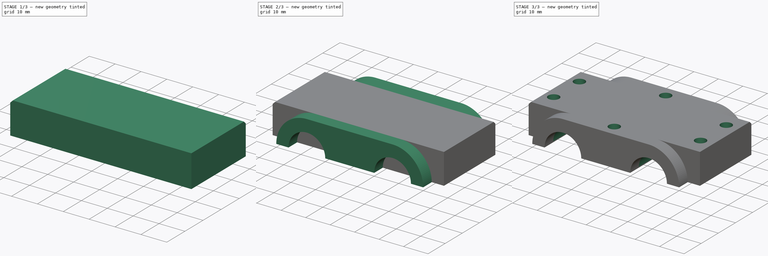
[diagram: build sequence overview — one tinted view per stage of 3, left to right]
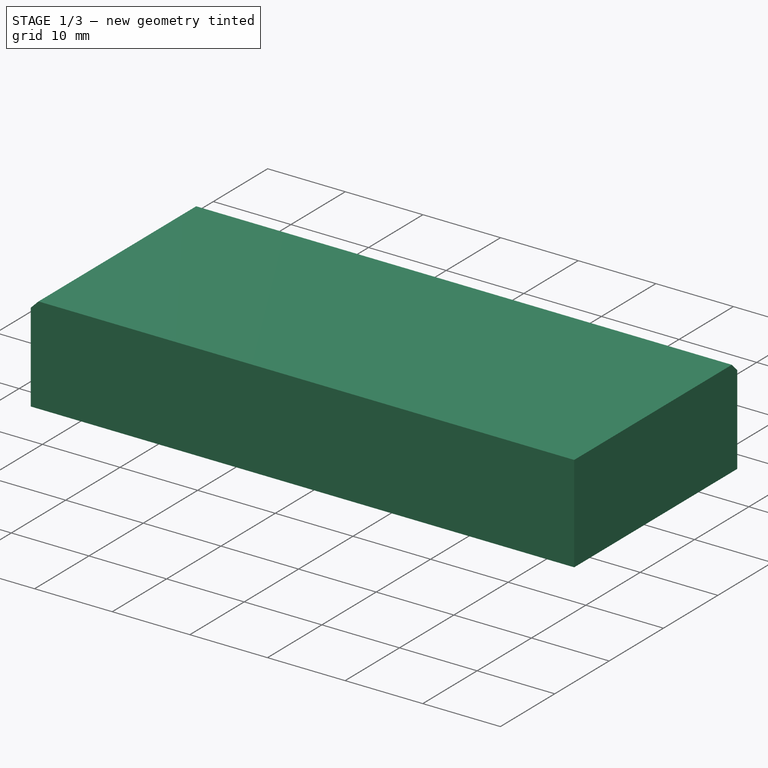
[diagram: stage 1 of 3 — iso view after this stage's code; geometry added in this stage tinted green]
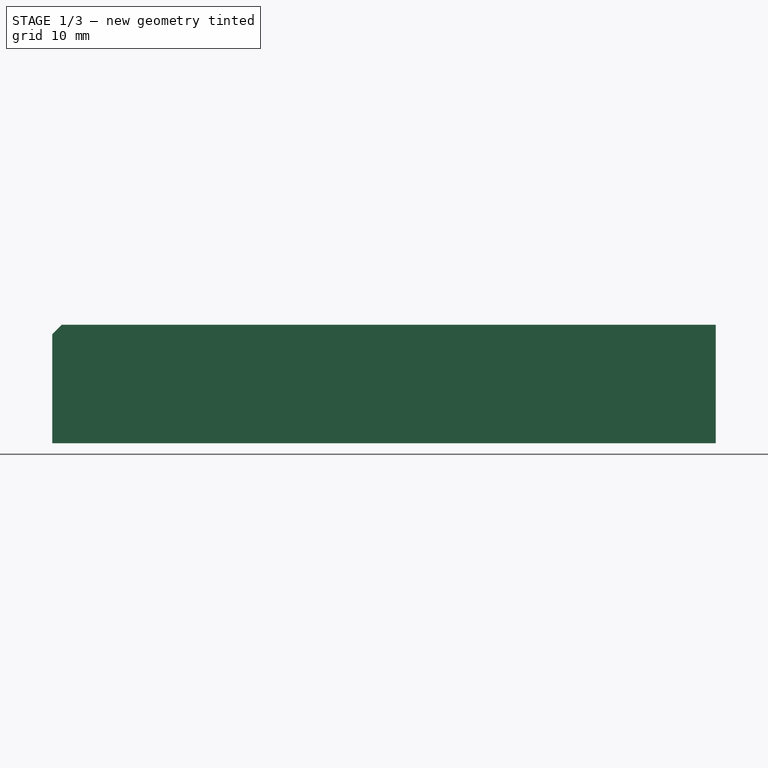
[diagram: stage 1 of 3 — front view after this stage's code; geometry added in this stage tinted green]
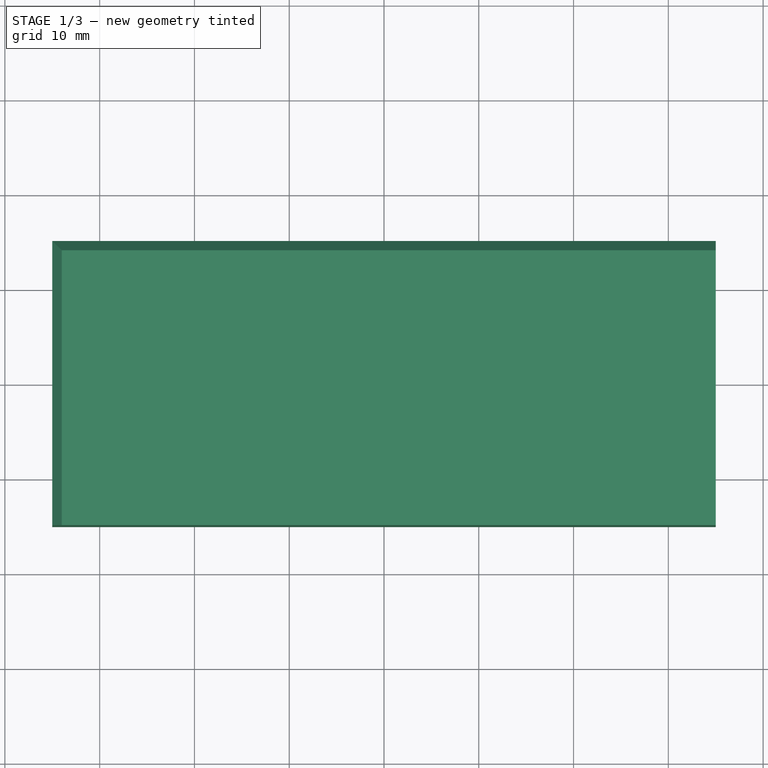
[diagram: stage 1 of 3 — top view after this stage's code; geometry added in this stage tinted green]
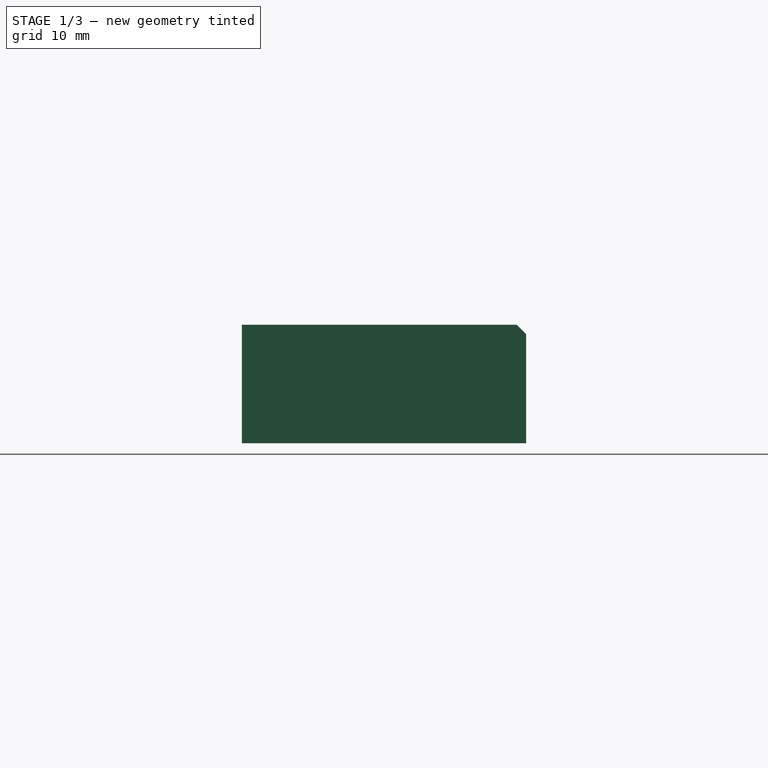
[diagram: stage 1 of 3 — right view after this stage's code; geometry added in this stage tinted green]
FCSTD DOCUMENT  (FreeCAD 0.16RUnknown)
Label: superior
License: All rights reserved
LicenseURL: http://en.wikipedia.org/wiki/All_rights_reserved
objects: Sketcher::SketchObject×4, PartDesign::Pad×2, PartDesign::Pocket×2, PartDesign::Chamfer×1
note: 13 computed .brp shape members not serialized (recipe doc carries the construction recipe); baked Part::Feature solids carry a one-line shape summary decoded from their .brp

FEATURE [Sketcher::SketchObject] Sketch
  sketch-geometry (8):
    g0: LineSegment StartX=-35 StartY=15 StartZ=0 EndX=-35 EndY=-15 EndZ=0
    g1: LineSegment StartX=-35 StartY=-15 StartZ=0 EndX=-30 EndY=-15 EndZ=0
    g2: LineSegment StartX=-30 StartY=-15 StartZ=0 EndX=30 EndY=-15 EndZ=0
    g3: LineSegment StartX=30 StartY=-15 StartZ=0 EndX=35 EndY=-15 EndZ=0
    g4: LineSegment StartX=35 StartY=-15 StartZ=0 EndX=35 EndY=15 EndZ=0
    g5: LineSegment StartX=35 StartY=15 StartZ=0 EndX=30 EndY=15 EndZ=0
    g6: LineSegment StartX=-30 StartY=15 StartZ=0 EndX=-35 EndY=15 EndZ=0
    g7: LineSegment StartX=-30 StartY=15 StartZ=0 EndX=30 EndY=15 EndZ=0
  constraints (23):
    c: Vertical(g0)
    c: Coincident(g0,g1)
    c: Horizontal(g1)
    c: Horizontal(g2)
    c: Horizontal(g3)
    c: Coincident(g3,g4)
    c: Vertical(g4)
    c: Coincident(g4,g5)
    c: Horizontal(g5)
    c: Coincident(g6,g0)
    c: Horizontal(g6)
    c: Symmetric(g5,g6,g-2)
    c: Symmetric(g2,g2,g-2)
    c: Symmetric(g5,g3,g-1)
    c: Symmetric(g6,g1,g-1)
    c: Symmetric(g4,g0,g-2)
    c: DistanceX(g2,g2) = 60
    c: DistanceY(g0,g0) = 30
    c: Equal(g0,g4)
    c: DistanceX(g0,g3) = 70
    c: Coincident(g2,g1)
    c: Coincident(g7,g6)
    c: Coincident(g7,g5)
FEATURE [PartDesign::Pad] Pad
  Length = 12.5
  Length2 = 100
  Sketch = -> Sketch
  Type = 0
FEATURE [PartDesign::Chamfer] Chamfer
  Base = -> Pad [Edge22,Edge4]
  Size = 1
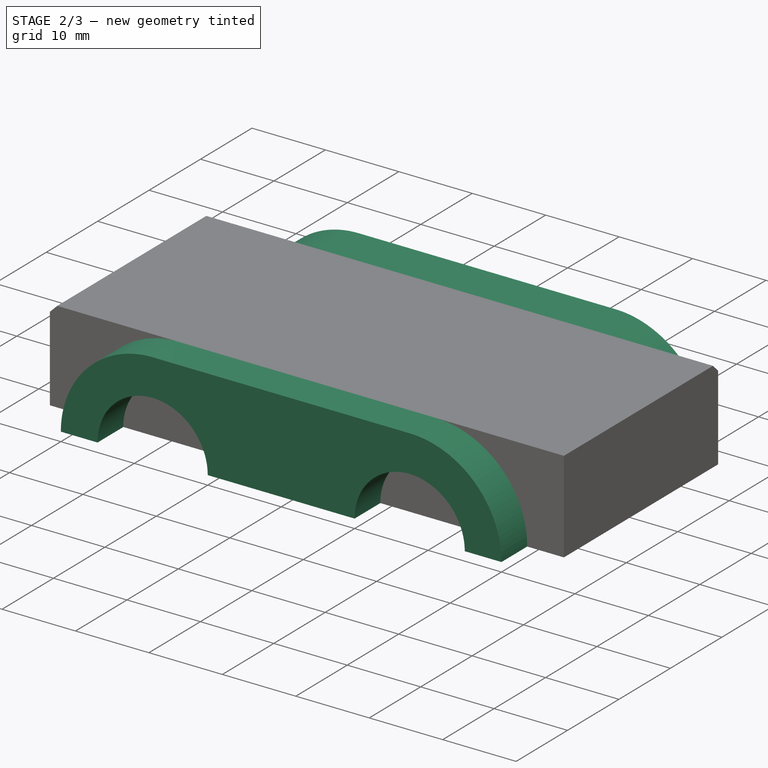
[diagram: stage 2 of 3 — iso view after this stage's code; geometry added in this stage tinted green]
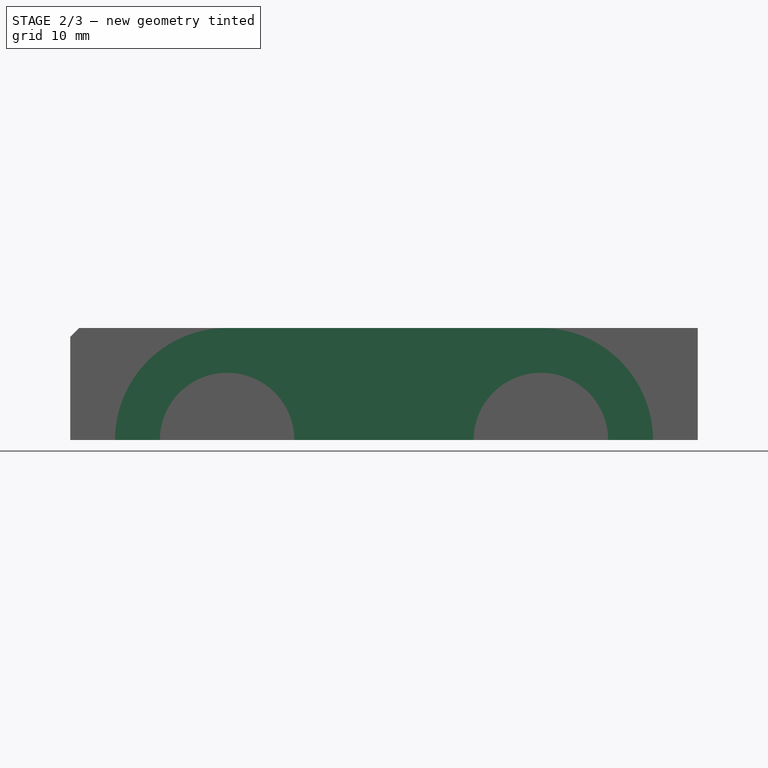
[diagram: stage 2 of 3 — front view after this stage's code; geometry added in this stage tinted green]
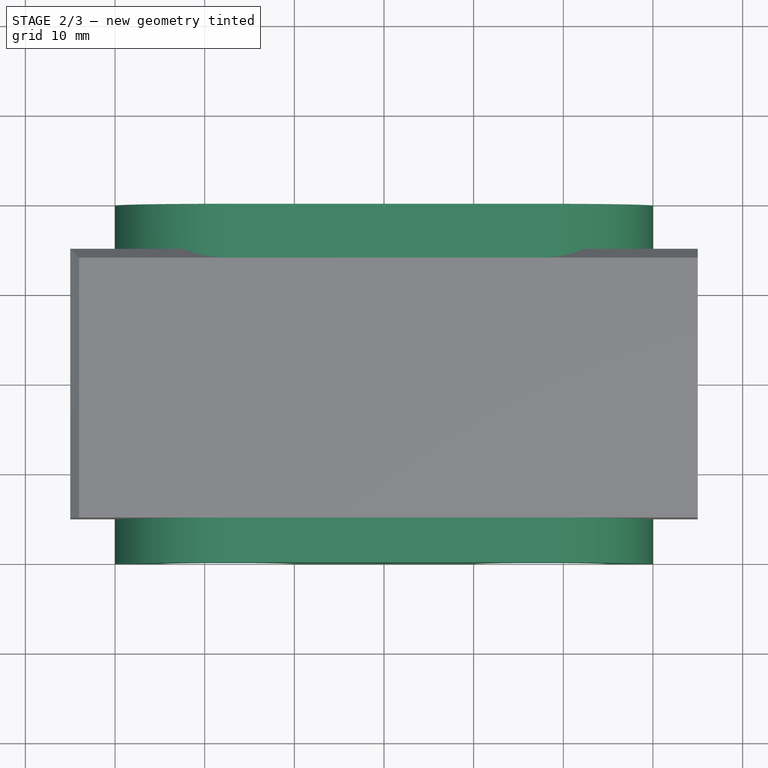
[diagram: stage 2 of 3 — top view after this stage's code; geometry added in this stage tinted green]
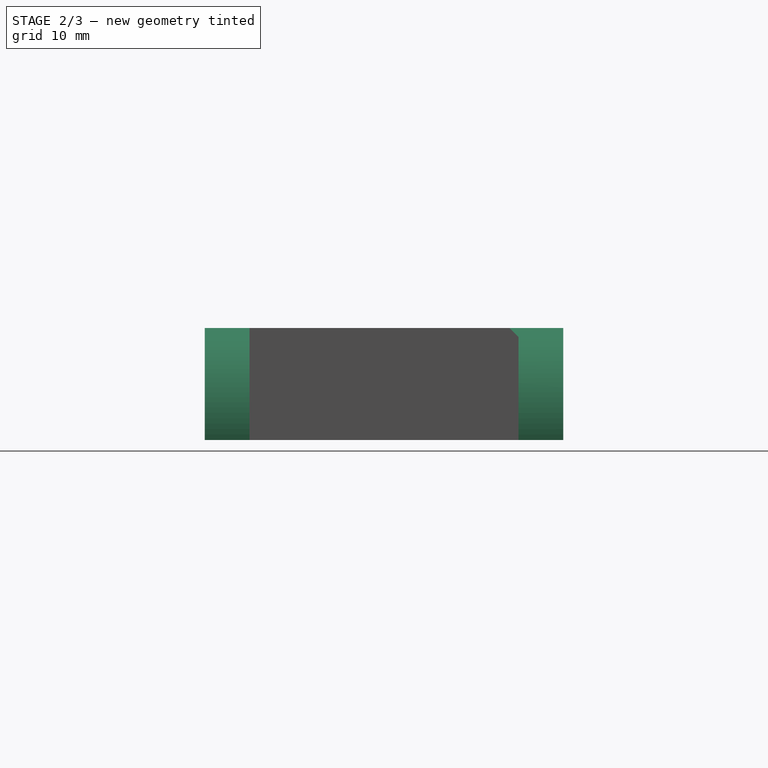
[diagram: stage 2 of 3 — right view after this stage's code; geometry added in this stage tinted green]
FEATURE [Sketcher::SketchObject] Sketch001
  Placement = pos=(0,-15,0) rot=(1,0,0;1.5708rad)
  Support = -> Chamfer [Face9]
  sketch-geometry (8):
    g0: ArcOfCircle CenterX=-17.5 CenterY=0 CenterZ=0 NormalX=0 NormalY=0 NormalZ=1 Radius=7.5 StartAngle=0 EndAngle=3.14159
    g1: ArcOfCircle CenterX=17.5 CenterY=0 CenterZ=0 NormalX=0 NormalY=0 NormalZ=1 Radius=7.5 StartAngle=0 EndAngle=3.14159
    g2: ArcOfCircle CenterX=17.5 CenterY=0 CenterZ=0 NormalX=0 NormalY=0 NormalZ=1 Radius=12.5 StartAngle=0 EndAngle=1.57079
    g3: LineSegment StartX=-25 StartY=0 StartZ=0 EndX=-30 EndY=0 EndZ=0
    g4: LineSegment StartX=25 StartY=0 StartZ=0 EndX=30 EndY=0 EndZ=0
    g5: LineSegment StartX=-17.5 StartY=12.5 StartZ=0 EndX=17.5 EndY=12.5 EndZ=0
    g6: LineSegment StartX=10 StartY=0 StartZ=0 EndX=-10 EndY=0 EndZ=0
    g7: ArcOfCircle CenterX=-17.5 CenterY=0 CenterZ=0 NormalX=0 NormalY=0 NormalZ=1 Radius=12.5 StartAngle=1.5708 EndAngle=3.14159
  constraints (25):
    c: Radius(g0) = 7.5
    c: DistanceX(g1,g4) = 12.5
    c: Symmetric(g1,g0,g-2)
    c: Coincident(g2,g1)
    c: Radius(g2) = 12.5
    c: Coincident(g3,g0)
    c: Coincident(g4,g1)
    c: Coincident(g2,g5)
    c: Coincident(g6,g1)
    c: Coincident(g7,g0)
    c: Coincident(g7,g3)
    c: Coincident(g7,g5)
    c: Tangent(g5,g7)
    c: Coincident(g0,g6)
    c: Symmetric(g0,g1,g-2)
    c: Horizontal(g5)
    c: DistanceY(g-1,g5) = 12.5
    c: Tangent(g5,g2)
    c: DistanceX(g3,g2) = 60
    c: PointOnObject(g1,g-1)
    c: PointOnObject(g0,g-1)
    c: PointOnObject(g3,g-1)
    c: PointOnObject(g2,g-1)
    c: PointOnObject(g0,g-1)
    c: Coincident(g4,g2)
FEATURE [PartDesign::Pad] Pad001
  Length = 5
  Length2 = 35
  Sketch = -> Sketch001
  Type = 4
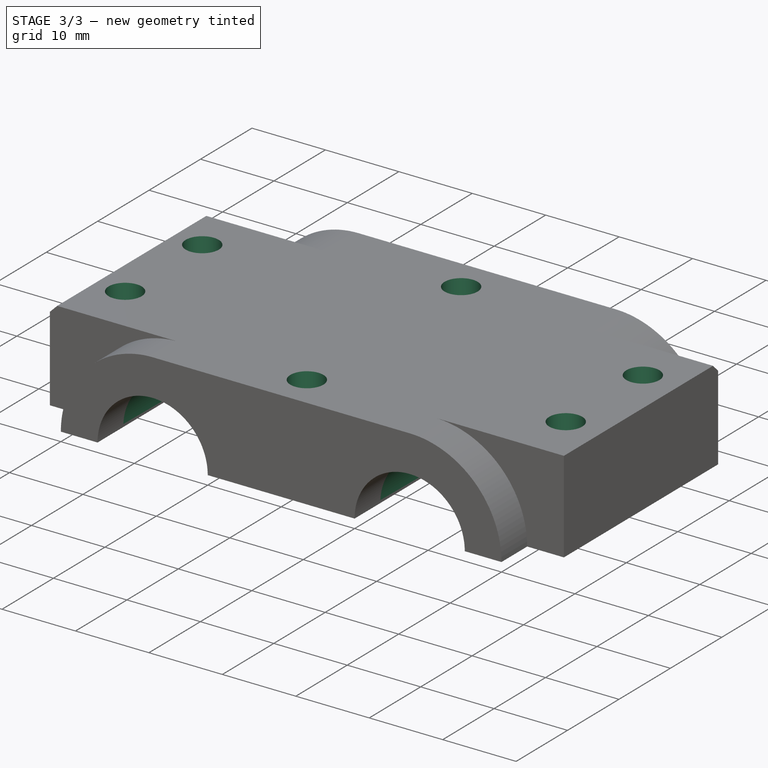
[diagram: stage 3 of 3 — iso view after this stage's code; geometry added in this stage tinted green]
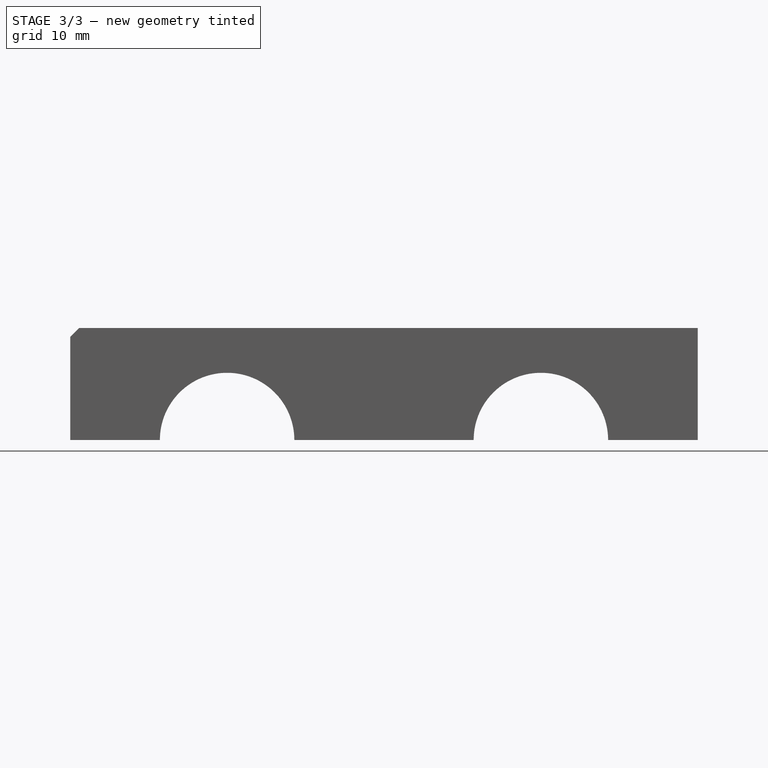
[diagram: stage 3 of 3 — front view after this stage's code; geometry added in this stage tinted green]
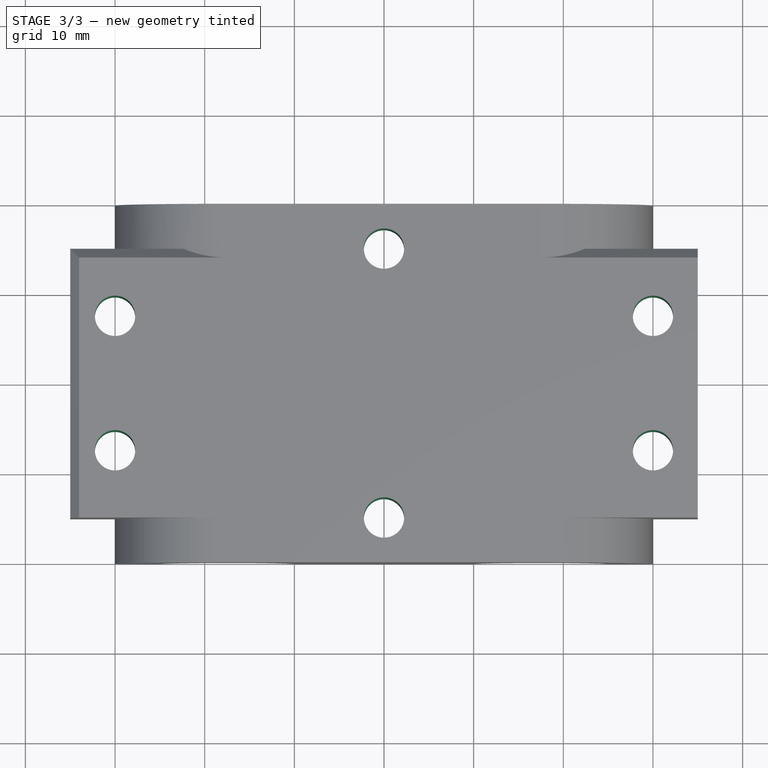
[diagram: stage 3 of 3 — top view after this stage's code; geometry added in this stage tinted green]
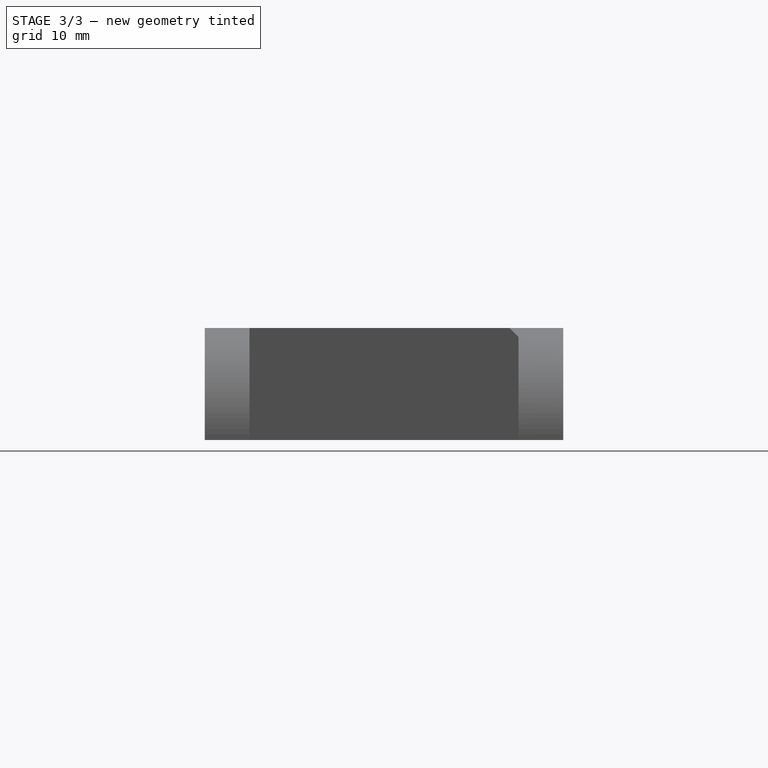
[diagram: stage 3 of 3 — right view after this stage's code; geometry added in this stage tinted green]
FEATURE [Sketcher::SketchObject] Sketch002
  ExternalGeometry = -> [Pad001]
  Placement = pos=(0,15,0) rot=(0,0.707107,0.707107;3.14159rad)
  Support = -> Pad001 [Face12]
  sketch-geometry (2):
    g0: Circle CenterX=-17.5 CenterY=0 CenterZ=0 NormalX=0 NormalY=0 NormalZ=1 Radius=7.5
    g1: Circle CenterX=17.5 CenterY=0 CenterZ=0 NormalX=0 NormalY=0 NormalZ=1 Radius=7.5
  constraints (4):
    c: Coincident(g0,g-4)
    c: Coincident(g1,g-3)
    c: PointOnObject(g-3,g1)
    c: PointOnObject(g-4,g0)
FEATURE [PartDesign::Pocket] Pocket
  Length = 5
  Sketch = -> Sketch002
  Type = 1
FEATURE [Sketcher::SketchObject] Sketch003
  Placement = pos=(0,0,12.5) rot=(0,0,1;0rad)
  Support = -> Pocket [Face28]
  sketch-geometry (6):
    g0: Circle CenterX=0 CenterY=15 CenterZ=0 NormalX=0 NormalY=0 NormalZ=1 Radius=2.25
    g1: Circle CenterX=0 CenterY=-15 CenterZ=0 NormalX=0 NormalY=0 NormalZ=1 Radius=2.25
    g2: Circle CenterX=-30 CenterY=7.5 CenterZ=0 NormalX=0 NormalY=0 NormalZ=1 Radius=2.25
    g3: Circle CenterX=-30 CenterY=-7.5 CenterZ=0 NormalX=0 NormalY=0 NormalZ=1 Radius=2.25
    g4: Circle CenterX=30 CenterY=7.5 CenterZ=0 NormalX=0 NormalY=0 NormalZ=1 Radius=2.25
    g5: Circle CenterX=30 CenterY=-7.5 CenterZ=0 NormalX=0 NormalY=0 NormalZ=1 Radius=2.25
  constraints (15):
    c: PointOnObject(g0,g-2)
    c: PointOnObject(g1,g-2)
    c: Radius(g5) = 2.25
    c: Equal(g5,g4)
    c: Equal(g5,g1)
    c: Equal(g5,g0)
    c: Equal(g5,g2)
    c: Equal(g5,g3)
    c: Symmetric(g5,g4,g-1)
    c: Symmetric(g2,g3,g-1)
    c: Symmetric(g2,g4,g-2)
    c: Symmetric(g1,g0,g-1)
    c: DistanceY(g1,g0) = 30
    c: DistanceX(g3,g5) = 60
    c: DistanceY(g3,g2) = 15
FEATURE [PartDesign::Pocket] Pocket001
  Length = 5
  Sketch = -> Sketch003
  Type = 1
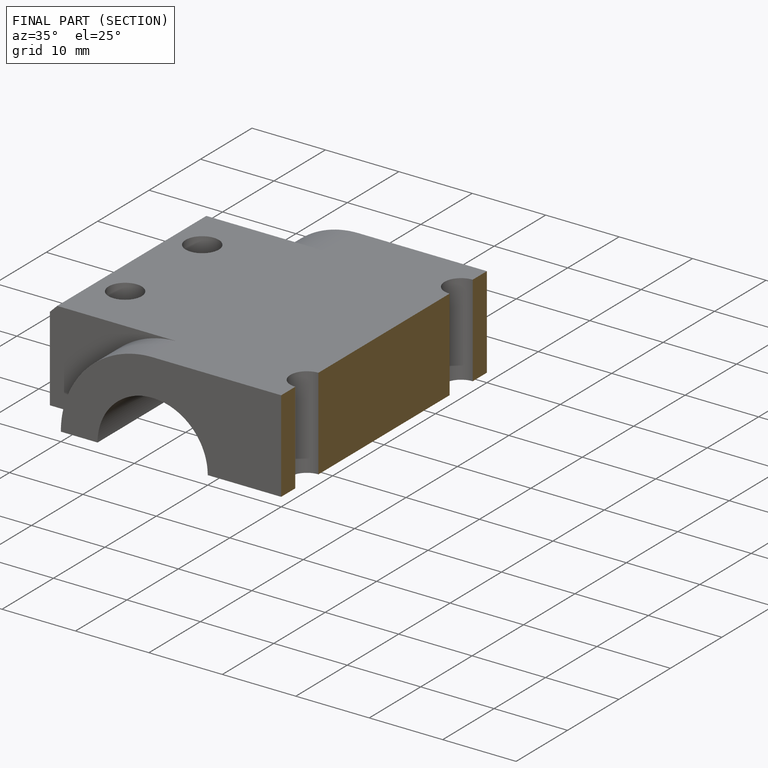
[diagram: finished part — half-section view (interior)]
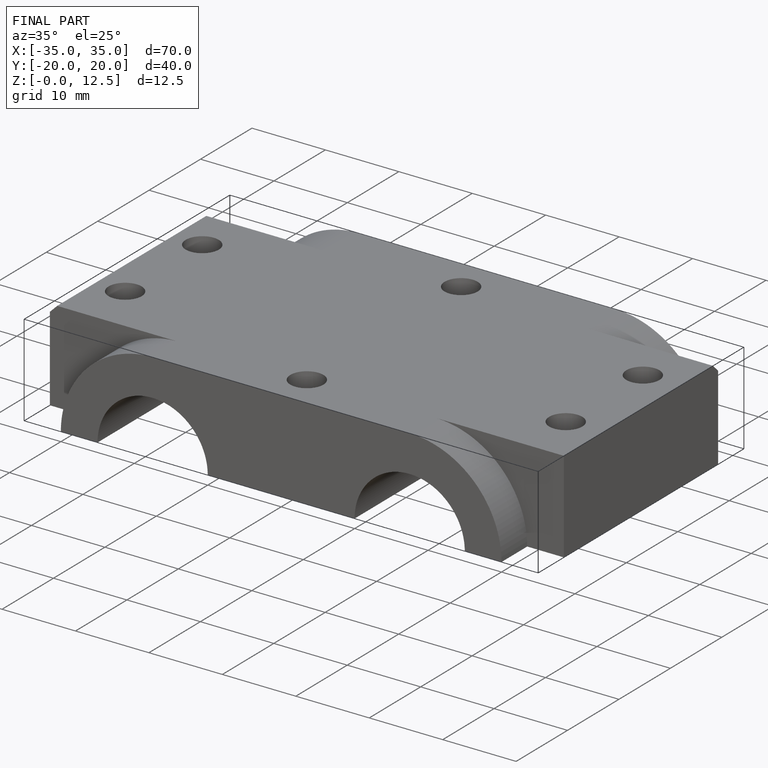
[diagram: finished part — iso view with bounding-box wireframe]
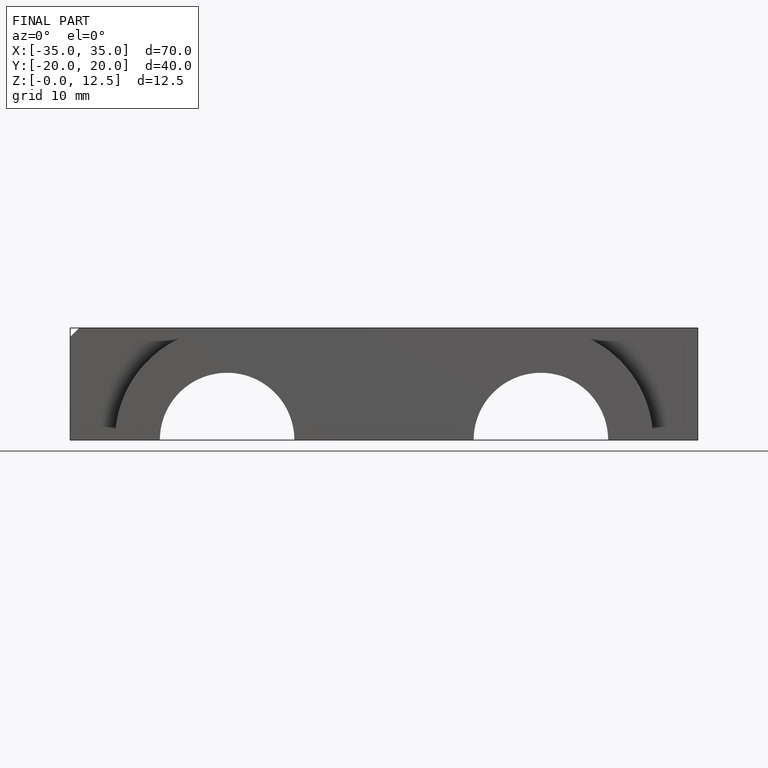
[diagram: finished part — front view with bounding-box wireframe]
